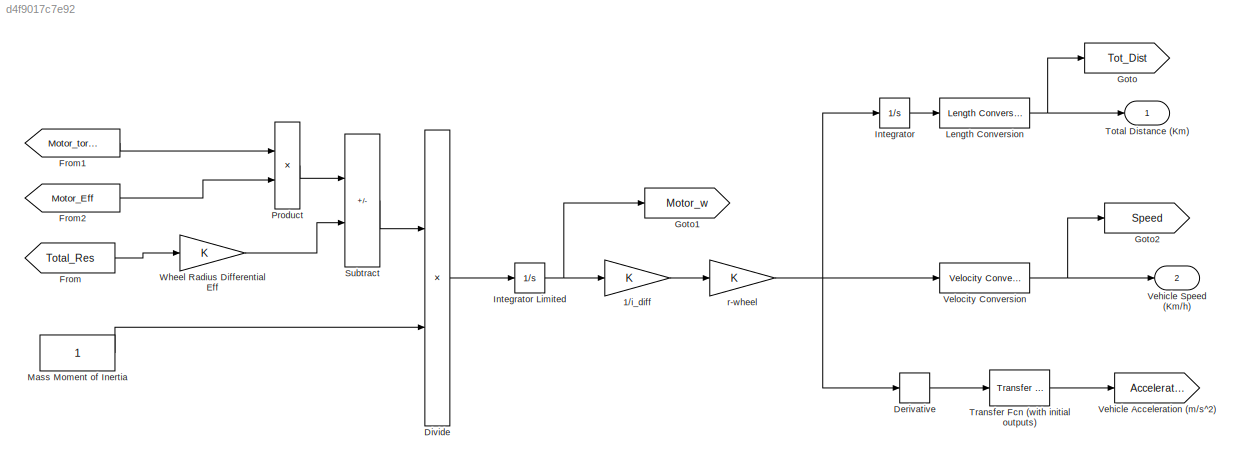
MODEL slx_d4f9017c7e92
KIND model
CONFIG AbsTol = auto
CONFIG EnableMultiTasking = off
CONFIG FixedStep = auto
CONFIG MaxStep = auto
CONFIG MinStep = auto
CONFIG RelTol = 1e-3
CONFIG SampleTimeConstraint = Unconstrained
CONFIG Solver = VariableStepAuto
CONFIG SolverName = VariableStepAuto
CONFIG StartTime = 0.0
CONFIG StopTime = 10.0
BLOCK [Gain] 1//i_diff
BLOCK [Derivative] Derivative
BLOCK [Product] Divide
  Inputs = */
  Ports = [2, 1]
BLOCK [From] From
  GotoTag = Total_Res
BLOCK [From] From1
  GotoTag = Motor_torque
BLOCK [From] From2
  GotoTag = Motor_Eff
BLOCK [Goto] Goto
  GotoTag = Tot_Dist
BLOCK [Goto] Goto1
  GotoTag = Motor_w
BLOCK [Goto] Goto2
  GotoTag = Speed
BLOCK [Integrator] Integrator
  Ports = [1, 1]
BLOCK [Integrator] Integrator Limited
  LimitOutput = on
  LowerSaturationLimit = 0
  Ports = [1, 1]
  UpperSaturationLimit = 1
BLOCK [Reference] Length Conversion  REF=aerolibconvert2/Length Conversion
  Ports = [1, 1]
  SourceBlock = aerolibconvert2/Length Conversion
  SourceProductBaseCode = AE
  SourceType = Length Conversion
BLOCK [Constant] Mass Moment of Inertia
BLOCK [Product] Product
  Ports = [2, 1]
BLOCK [Sum] Subtract
  IconShape = rectangular
  Inputs = +-
  Ports = [2, 1]
BLOCK [Outport] Total Distance (Km)
BLOCK [Reference] Transfer Fcn (with initial outputs)  REF=simulink_extras/Additional
Linear/Transfer Fcn
(with initial outputs)
  Ports = [1, 1]
  SourceBlock = simulink_extras/Additional\nLinear/Transfer Fcn\n(with initial outputs)
  SourceProductBaseCode = SL
  SourceType = Transfer Function with Initial Outputs
BLOCK [Goto] Vehicle Acceleration (m//s^2)
  GotoTag = Acceleration
BLOCK [Outport] Vehicle Speed (Km//h) 
  Port = 2
BLOCK [Reference] Velocity Conversion  REF=aerolibconvert2/Velocity Conversion
  Ports = [1, 1]
  SourceBlock = aerolibconvert2/Velocity Conversion
  SourceProductBaseCode = AE
  SourceType = Velocity Conversion
BLOCK [Gain] Wheel Radius Differential Eff
BLOCK [Gain] r-wheel
LINE 1//i_diff:1 -> r-wheel:1
LINE Derivative:1 -> Transfer Fcn (with initial outputs):1
LINE Divide:1 -> Integrator Limited:1
LINE From1:1 -> Product:1
LINE From2:1 -> Product:2
LINE From:1 -> Wheel Radius Differential Eff:1
NET Integrator Limited:1 -> 1//i_diff:1, Goto1:1
LINE Integrator:1 -> Length Conversion:1
NET Length Conversion:1 -> Goto:1, Total Distance (Km):1
LINE Mass Moment of Inertia:1 -> Divide:2
LINE Product:1 -> Subtract:1
LINE Subtract:1 -> Divide:1
LINE Transfer Fcn (with initial outputs):1 -> Vehicle Acceleration (m//s^2):1
NET Velocity Conversion:1 -> Goto2:1, Vehicle Speed (Km//h) :1
LINE Wheel Radius Differential Eff:1 -> Subtract:2
NET r-wheel:1 -> Derivative:1, Integrator:1, Velocity Conversion:1
note: NET lines group one-source signal fan-out (src -> all destinations, sorted); 1:1 wires keep LINE
